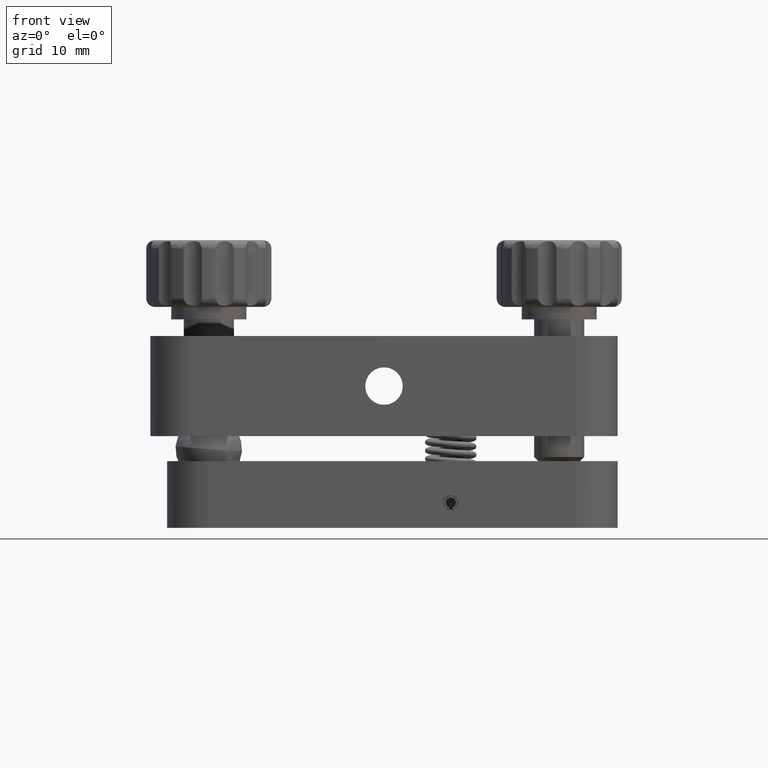
[diagram: clean part render]
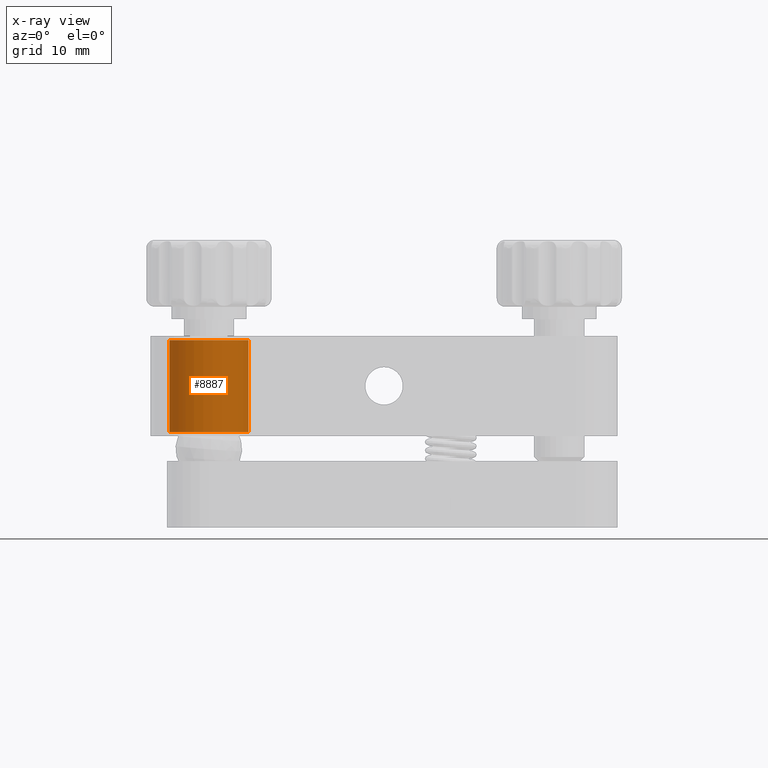
[diagram: x-ray — body ghosted, one internal face saturated and labeled with its STEP entity id]
A machine part, front view, then the same camera in x-ray: the body is ghosted and one INTERNAL B-rep face — a face not visible from any outside direction — is saturated and labeled: STEP entity #8887.
In plain terms, the highlighted cylindrical surface (partial cylindrical patch) has radius 4.75 mm, axis along (0, -0, 1).
Its self-contained STEP definition (entity closure, byte-faithful):
#919 = AXIS2_PLACEMENT_3D ( 'NONE', #19938, #11868, #11801 ) ;
#1367 = CARTESIAN_POINT ( 'NONE',  ( -25.74888620878003200, 21.10285803837798500, -6.500000000000001800 ) ) ;
#2470 = EDGE_CURVE ( 'NONE', #7970, #12956, #5425, .T. ) ;
#2822 = CARTESIAN_POINT ( 'NONE',  ( -16.25111379122000700, 20.89714196162201200, -7.000000000000004400 ) ) ;
#2883 = DIRECTION ( 'NONE',  ( 6.723868016483991600E-018, -2.267180765222987400E-018, 1.000000000000000000 ) ) ;
#3454 = VERTEX_POINT ( 'NONE', #12475 ) ;
#4005 = VECTOR ( 'NONE', #9346, 1000.000000000000000 ) ;
#4729 = CARTESIAN_POINT ( 'NONE',  ( -21.00000000000002100, 20.99999999999999600, -7.000000000000004400 ) ) ;
#5425 = CIRCLE ( 'NONE', #10420, 4.749999999999999100 ) ;
#6266 = VERTEX_POINT ( 'NONE', #8920 ) ;
#7147 = EDGE_CURVE ( 'NONE', #7970, #6266, #9018, .T. ) ;
#7269 = VECTOR ( 'NONE', #9492, 1000.000000000000000 ) ;
#7970 = VERTEX_POINT ( 'NONE', #1367 ) ;
#8000 = LINE ( 'NONE', #2822, #4005 ) ;
#8887 = ADVANCED_FACE ( 'NONE', ( #12691 ), #16440, .T. ) ;
#8920 = CARTESIAN_POINT ( 'NONE',  ( -25.74888620878003200, 21.10285803837798500, 4.499999999999995600 ) ) ;
#9018 = LINE ( 'NONE', #9427, #7269 ) ;
#9346 = DIRECTION ( 'NONE',  ( 6.723868016483991600E-018, -2.267180765222987400E-018, 1.000000000000000000 ) ) ;
#9427 = CARTESIAN_POINT ( 'NONE',  ( -25.74888620878003600, 21.10285803837798500, -7.000000000000004400 ) ) ;
#9492 = DIRECTION ( 'NONE',  ( 6.723868016483991600E-018, -2.267180765222987400E-018, 1.000000000000000000 ) ) ;
#10105 = EDGE_LOOP ( 'NONE', ( #17835, #14538, #19332, #10763 ) ) ;
#10420 = AXIS2_PLACEMENT_3D ( 'NONE', #10963, #2883, #17129 ) ;
#10763 = ORIENTED_EDGE ( 'NONE', *, *, #11636, .T. ) ;
#10963 = CARTESIAN_POINT ( 'NONE',  ( -21.00000000000002100, 20.99999999999999600, -6.500000000000001800 ) ) ;
#11636 = EDGE_CURVE ( 'NONE', #3454, #6266, #17857, .T. ) ;
#11801 = DIRECTION ( 'NONE',  ( -0.9997655176378981200, 0.02165432386904961000, 0.0000000000000000000 ) ) ;
#11868 = DIRECTION ( 'NONE',  ( -6.723868016483991600E-018, 2.267180765222987400E-018, -1.000000000000000000 ) ) ;
#12475 = CARTESIAN_POINT ( 'NONE',  ( -16.25111379122001100, 20.89714196162201200, 4.499999999999995600 ) ) ;
#12691 = FACE_OUTER_BOUND ( 'NONE', #10105, .T. ) ;
#12956 = VERTEX_POINT ( 'NONE', #17594 ) ;
#14281 = DIRECTION ( 'NONE',  ( 6.723868016483991600E-018, -2.267180765222987400E-018, 1.000000000000000000 ) ) ;
#14538 = ORIENTED_EDGE ( 'NONE', *, *, #2470, .T. ) ;
#15896 = DIRECTION ( 'NONE',  ( 0.9997655176378981200, -0.02165432386904961000, 0.0000000000000000000 ) ) ;
#16440 = CYLINDRICAL_SURFACE ( 'NONE', #20496, 4.749999999999999100 ) ;
#17129 = DIRECTION ( 'NONE',  ( -0.9997655176378981200, 0.02165432386904961000, 0.0000000000000000000 ) ) ;
#17594 = CARTESIAN_POINT ( 'NONE',  ( -16.25111379122001100, 20.89714196162201200, -6.500000000000001800 ) ) ;
#17835 = ORIENTED_EDGE ( 'NONE', *, *, #7147, .F. ) ;
#17857 = CIRCLE ( 'NONE', #919, 4.749999999999999100 ) ;
#17921 = EDGE_CURVE ( 'NONE', #12956, #3454, #8000, .T. ) ;
#19332 = ORIENTED_EDGE ( 'NONE', *, *, #17921, .T. ) ;
#19938 = CARTESIAN_POINT ( 'NONE',  ( -21.00000000000002100, 20.99999999999999600, 4.499999999999995600 ) ) ;
#20496 = AXIS2_PLACEMENT_3D ( 'NONE', #4729, #14281, #15896 ) ;